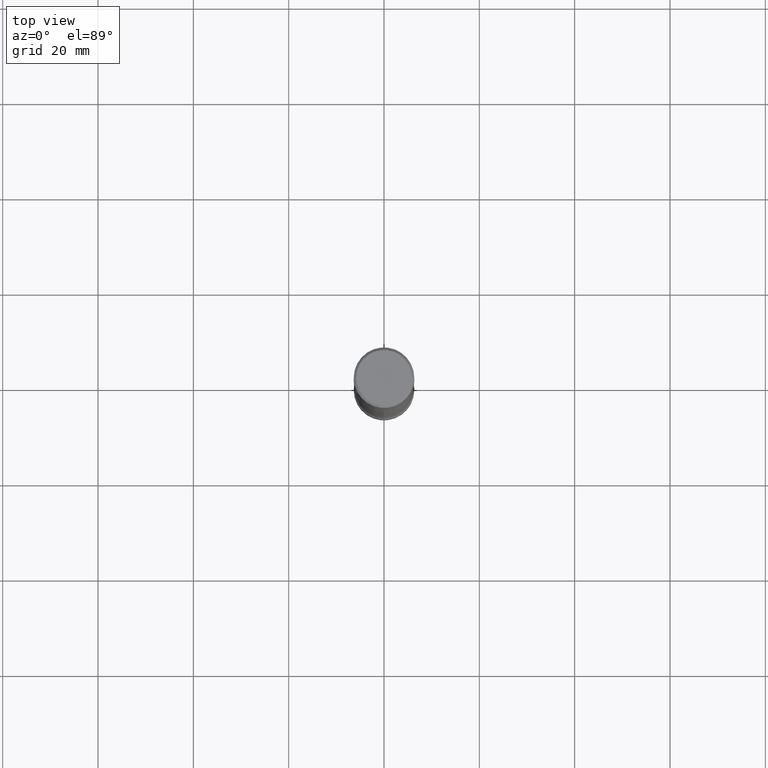
[diagram: clean part render]
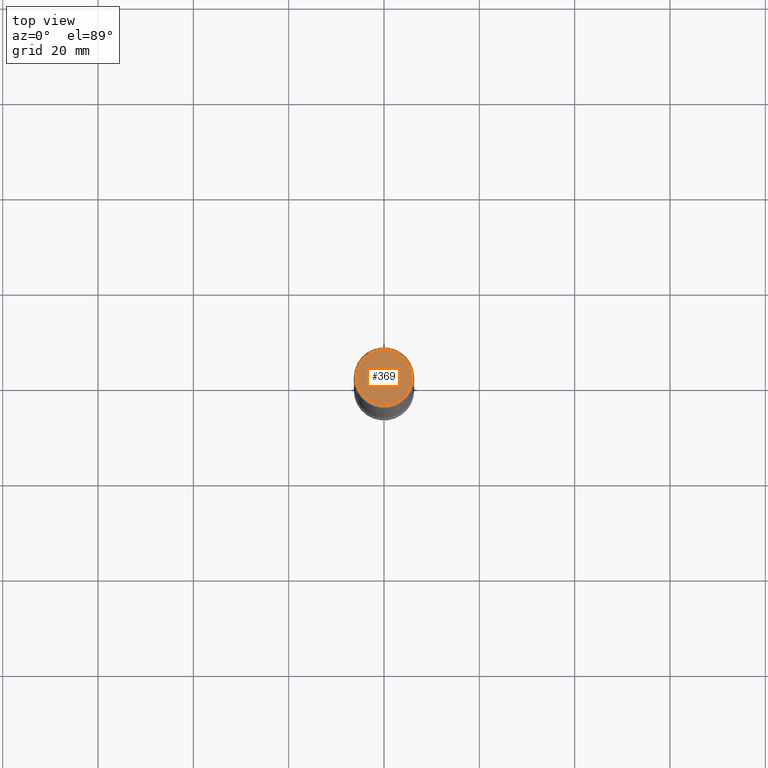
[diagram: same view with one face highlighted and labeled with its STEP entity id]
A machine part, top view. The second image highlights one B-rep face of the part: STEP entity #369.
In plain terms, the highlighted planar face has unit normal (0, -0, -1).
Its self-contained STEP definition (entity closure, byte-faithful):
#5 = CIRCLE ( 'NONE', #384, 0.2300000000000001210 ) ;
#47 = VERTEX_POINT ( 'NONE', #275 ) ;
#60 = ORIENTED_EDGE ( 'NONE', *, *, #113, .T. ) ;
#113 = EDGE_CURVE ( 'NONE', #223, #47, #547, .T. ) ;
#135 = EDGE_LOOP ( 'NONE', ( #60, #297 ) ) ;
#168 = PLANE ( 'NONE',  #248 ) ;
#223 = VERTEX_POINT ( 'NONE', #372 ) ;
#228 = EDGE_CURVE ( 'NONE', #47, #223, #5, .T. ) ;
#248 = AXIS2_PLACEMENT_3D ( 'NONE', #432, #512, #339 ) ;
#252 = DIRECTION ( 'NONE',  ( 1.000000000000000000, -6.982962677686265922E-15, 4.876225828469306079E-29 ) ) ;
#275 = CARTESIAN_POINT ( 'NONE',  ( 0.2300000000000001210, -1.681434332853599997E-15, 4.268512490111905999E-18 ) ) ;
#297 = ORIENTED_EDGE ( 'NONE', *, *, #228, .T. ) ;
#305 = CARTESIAN_POINT ( 'NONE',  ( -1.043851414335219820E-46, 1.490343170380447200E-32, 4.268512490100411279E-18 ) ) ;
#312 = AXIS2_PLACEMENT_3D ( 'NONE', #305, #515, #546 ) ;
#336 = CARTESIAN_POINT ( 'NONE',  ( -1.043851414335219820E-46, 1.490343170380447200E-32, 4.268512490100411279E-18 ) ) ;
#339 = DIRECTION ( 'NONE',  ( -1.000000000000000000, 6.982962677686265922E-15, -4.876176775795935793E-29 ) ) ;
#369 = ADVANCED_FACE ( 'NONE', ( #387 ), #168, .F. ) ;
#372 = CARTESIAN_POINT ( 'NONE',  ( -0.2300000000000001210, 1.640996229256273111E-15, 4.268512490089056766E-18 ) ) ;
#384 = AXIS2_PLACEMENT_3D ( 'NONE', #336, #463, #252 ) ;
#387 = FACE_OUTER_BOUND ( 'NONE', #135, .T. ) ;
#432 = CARTESIAN_POINT ( 'NONE',  ( 1.606081415867842053E-15, 0.2300000000000001210, -8.009064516888736730E-16 ) ) ;
#463 = DIRECTION ( 'NONE',  ( -2.445468806185136597E-29, 3.491481338843145583E-15, 1.000000000000000000 ) ) ;
#512 = DIRECTION ( 'NONE',  ( 2.438088387897960049E-29, -3.491481338843145188E-15, -1.000000000000000000 ) ) ;
#515 = DIRECTION ( 'NONE',  ( -2.445468806185136597E-29, 3.491481338843145583E-15, 1.000000000000000000 ) ) ;
#546 = DIRECTION ( 'NONE',  ( 1.000000000000000000, -6.982962677686265922E-15, 4.876225828469306079E-29 ) ) ;
#547 = CIRCLE ( 'NONE', #312, 0.2300000000000001210 ) ;